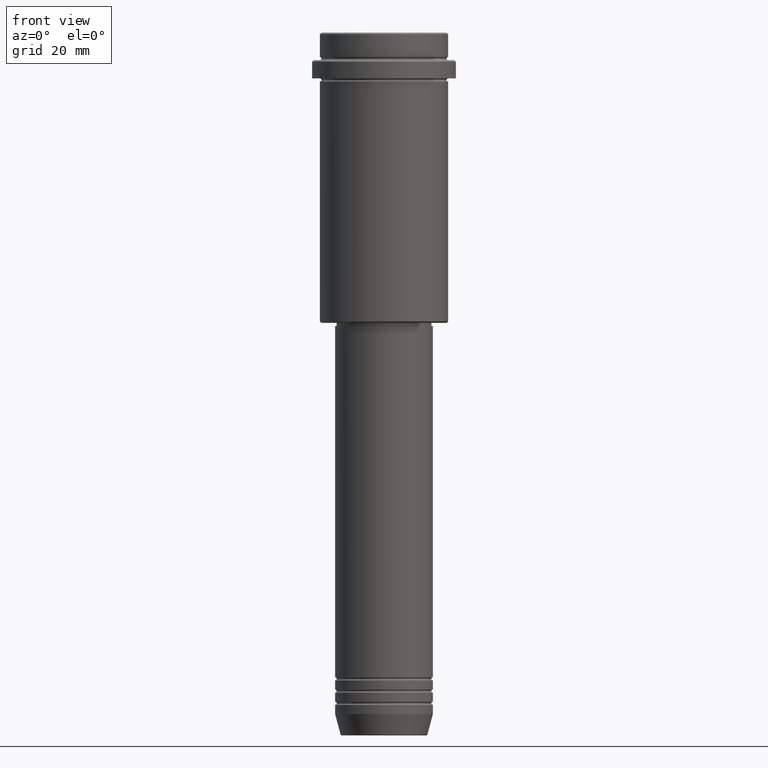
[diagram: clean part render]
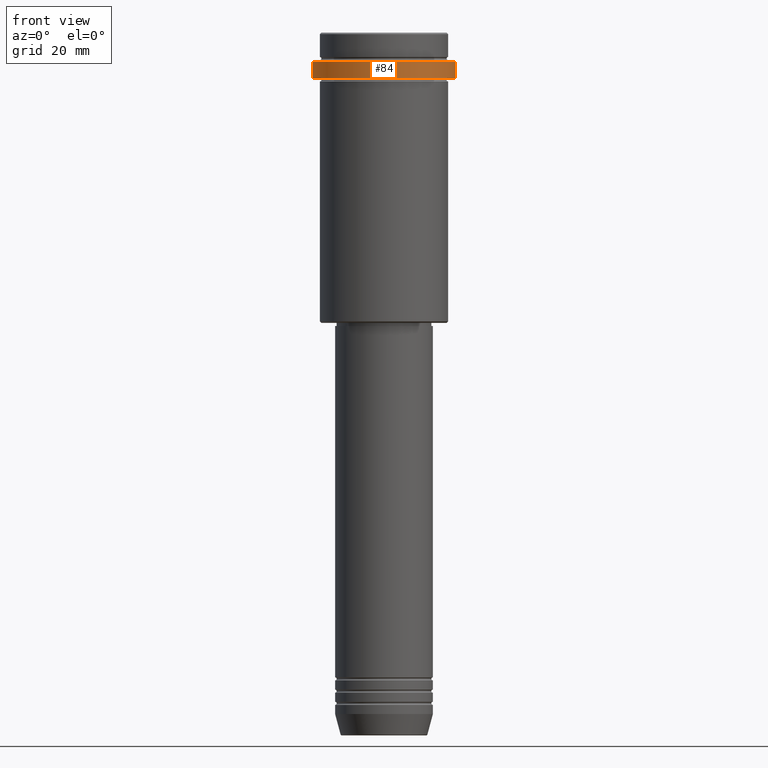
[diagram: same view with one face highlighted and labeled with its STEP entity id]
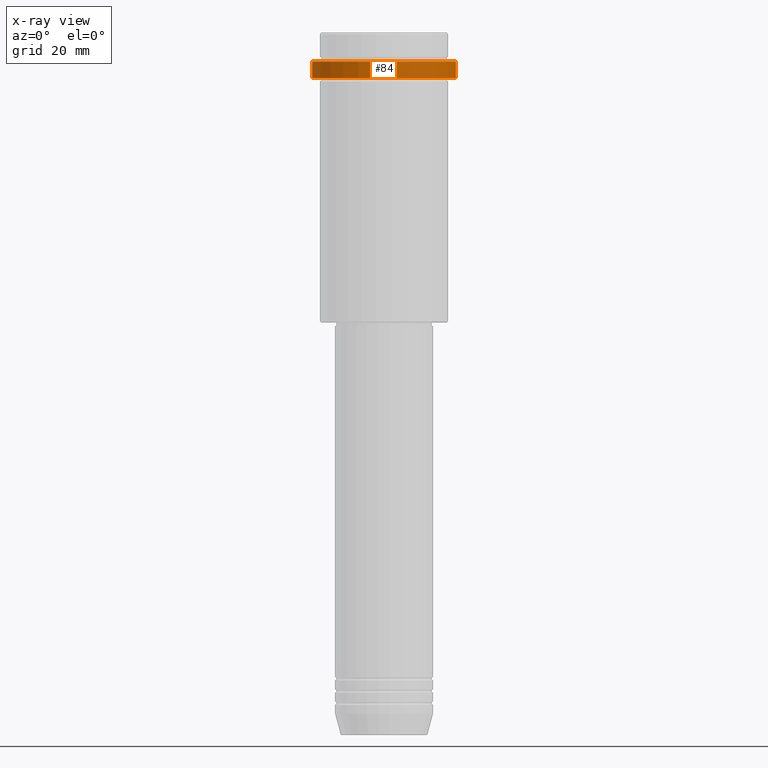
[diagram: x-ray of the same camera — body ghosted, the highlighted face saturated]
A machine part, front view. The second image highlights one B-rep face of the part: STEP entity #84.
The next image is the same camera in x-ray: the body ghosted, the highlighted face saturated — about 0% of this face is hidden behind the body in this view.
In plain terms, the highlighted cylindrical surface (partial cylindrical patch) has radius 23.5 mm, axis along (-0, -0, 1).
Its self-contained STEP definition (entity closure, byte-faithful):
#15 = DIRECTION ( 'NONE',  ( -0.000000000000000000, -0.000000000000000000, 1.000000000000000000 ) ) ;
#84 = ADVANCED_FACE ( 'NONE', ( #230 ), #1102, .T. ) ;
#96 = DIRECTION ( 'NONE',  ( -0.000000000000000000, -0.000000000000000000, 1.000000000000000000 ) ) ;
#126 = CARTESIAN_POINT ( 'NONE',  ( 0.000000000000000000, 0.000000000000000000, 0.000000000000000000 ) ) ;
#131 = VERTEX_POINT ( 'NONE', #859 ) ;
#148 = CARTESIAN_POINT ( 'NONE',  ( 23.50000000000000000, 0.000000000000000000, -9.500000000000001776 ) ) ;
#151 = DIRECTION ( 'NONE',  ( -0.000000000000000000, -0.000000000000000000, 1.000000000000000000 ) ) ;
#180 = ORIENTED_EDGE ( 'NONE', *, *, #533, .T. ) ;
#230 = FACE_OUTER_BOUND ( 'NONE', #1250, .T. ) ;
#312 = CARTESIAN_POINT ( 'NONE',  ( 0.000000000000000000, 0.000000000000000000, -9.500000000000001776 ) ) ;
#341 = DIRECTION ( 'NONE',  ( 1.000000000000000000, 0.000000000000000000, 0.000000000000000000 ) ) ;
#385 = CIRCLE ( 'NONE', #1030, 23.50000000000000000 ) ;
#452 = CIRCLE ( 'NONE', #691, 23.50000000000000355 ) ;
#454 = VECTOR ( 'NONE', #1311, 1000.000000000000000 ) ;
#471 = CARTESIAN_POINT ( 'NONE',  ( -23.50000000000000000, 2.877919977996280320E-15, -9.500000000000001776 ) ) ;
#528 = DIRECTION ( 'NONE',  ( 1.000000000000000000, 0.000000000000000000, 0.000000000000000000 ) ) ;
#533 = EDGE_CURVE ( 'NONE', #933, #131, #452, .T. ) ;
#555 = ORIENTED_EDGE ( 'NONE', *, *, #735, .T. ) ;
#592 = AXIS2_PLACEMENT_3D ( 'NONE', #126, #15, #882 ) ;
#675 = ORIENTED_EDGE ( 'NONE', *, *, #923, .F. ) ;
#677 = ORIENTED_EDGE ( 'NONE', *, *, #990, .T. ) ;
#691 = AXIS2_PLACEMENT_3D ( 'NONE', #732, #96, #528 ) ;
#732 = CARTESIAN_POINT ( 'NONE',  ( 0.000000000000000000, 0.000000000000000000, -15.00000000000000178 ) ) ;
#735 = EDGE_CURVE ( 'NONE', #131, #1107, #1011, .T. ) ;
#749 = DIRECTION ( 'NONE',  ( 0.000000000000000000, 0.000000000000000000, -1.000000000000000000 ) ) ;
#761 = CARTESIAN_POINT ( 'NONE',  ( -23.50000000000000000, 2.877919977996280320E-15, 0.000000000000000000 ) ) ;
#765 = CARTESIAN_POINT ( 'NONE',  ( 23.50000000000000000, 0.000000000000000000, 0.000000000000000000 ) ) ;
#859 = CARTESIAN_POINT ( 'NONE',  ( 23.50000000000000355, 0.000000000000000000, -15.00000000000000178 ) ) ;
#865 = LINE ( 'NONE', #761, #454 ) ;
#874 = VECTOR ( 'NONE', #151, 1000.000000000000000 ) ;
#882 = DIRECTION ( 'NONE',  ( 1.000000000000000000, 0.000000000000000000, 0.000000000000000000 ) ) ;
#923 = EDGE_CURVE ( 'NONE', #933, #1012, #865, .T. ) ;
#933 = VERTEX_POINT ( 'NONE', #987 ) ;
#987 = CARTESIAN_POINT ( 'NONE',  ( -23.50000000000000711, 2.877919977996281109E-15, -15.00000000000000178 ) ) ;
#990 = EDGE_CURVE ( 'NONE', #1107, #1012, #385, .T. ) ;
#1011 = LINE ( 'NONE', #765, #874 ) ;
#1012 = VERTEX_POINT ( 'NONE', #471 ) ;
#1030 = AXIS2_PLACEMENT_3D ( 'NONE', #312, #749, #341 ) ;
#1102 = CYLINDRICAL_SURFACE ( 'NONE', #592, 23.50000000000000000 ) ;
#1107 = VERTEX_POINT ( 'NONE', #148 ) ;
#1250 = EDGE_LOOP ( 'NONE', ( #675, #180, #555, #677 ) ) ;
#1311 = DIRECTION ( 'NONE',  ( -0.000000000000000000, -0.000000000000000000, 1.000000000000000000 ) ) ;